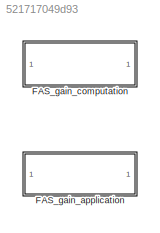
MODEL slx_521717049d93
KIND library
CONFIG AbsTol = auto
CONFIG EnableMultiTasking = off
CONFIG FixedStep = auto
CONFIG MaxStep = auto
CONFIG MinStep = auto
CONFIG RelTol = 1e-3
CONFIG SampleTimeConstraint = Unconstrained
CONFIG SolverName = VariableStepAuto
CONFIG StartTime = 0.0
CONFIG StopTime = 10.0
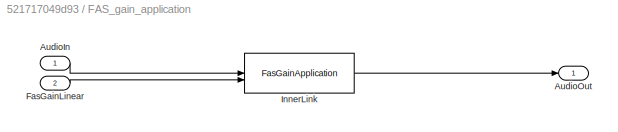
BLOCK [SubSystem] FAS_gain_application
BLOCK [Inport] FAS_gain_application/AudioIn
BLOCK [Outport] FAS_gain_application/AudioOut
BLOCK [Inport] FAS_gain_application/FasGainLinear
  Port = 2
BLOCK [Reference] FAS_gain_application/InnerLink  REF=FasBtc/FasGainApplication
  SourceBlock = FasBtc/FasGainApplication
  SourceProductName = Bose Blocklib
  SourceType = Blocklib FasGainApplication
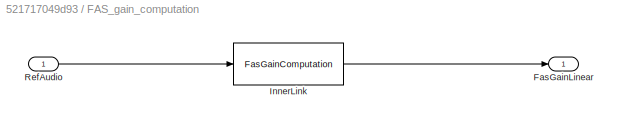
BLOCK [SubSystem] FAS_gain_computation
BLOCK [Outport] FAS_gain_computation/FasGainLinear
BLOCK [Reference] FAS_gain_computation/InnerLink  REF=FasBtc/FasGainComputation
  SourceBlock = FasBtc/FasGainComputation
  SourceProductName = Bose Blocklib
  SourceType = Blocklib FasGainComputation
BLOCK [Inport] FAS_gain_computation/RefAudio
LINE FAS_gain_application/AudioIn:1 -> FAS_gain_application/InnerLink:1
LINE FAS_gain_application/FasGainLinear:1 -> FAS_gain_application/InnerLink:2
LINE FAS_gain_application/InnerLink:1 -> FAS_gain_application/AudioOut:1
LINE FAS_gain_computation/InnerLink:1 -> FAS_gain_computation/FasGainLinear:1
LINE FAS_gain_computation/RefAudio:1 -> FAS_gain_computation/InnerLink:1
